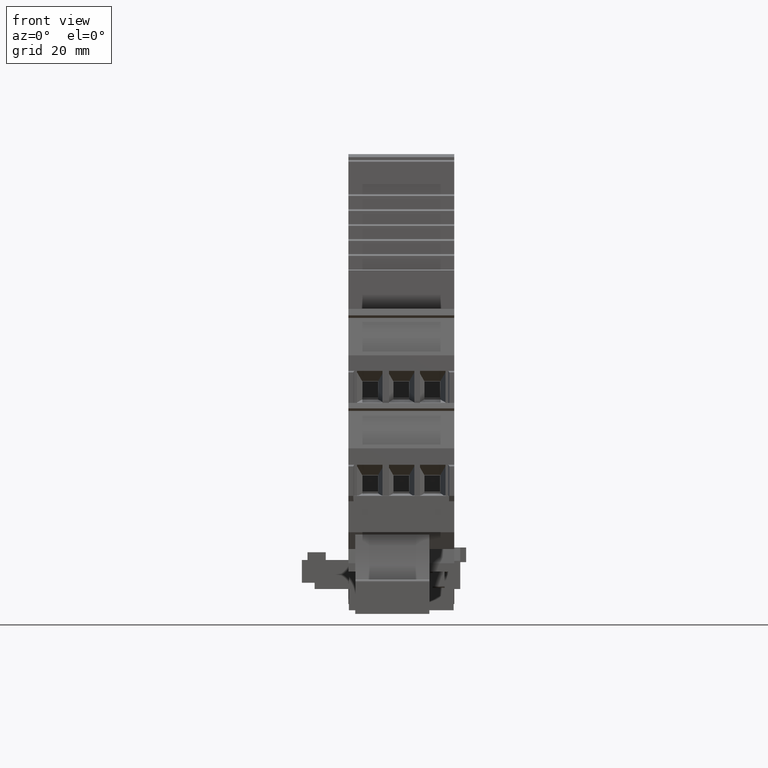
[diagram: clean part render]
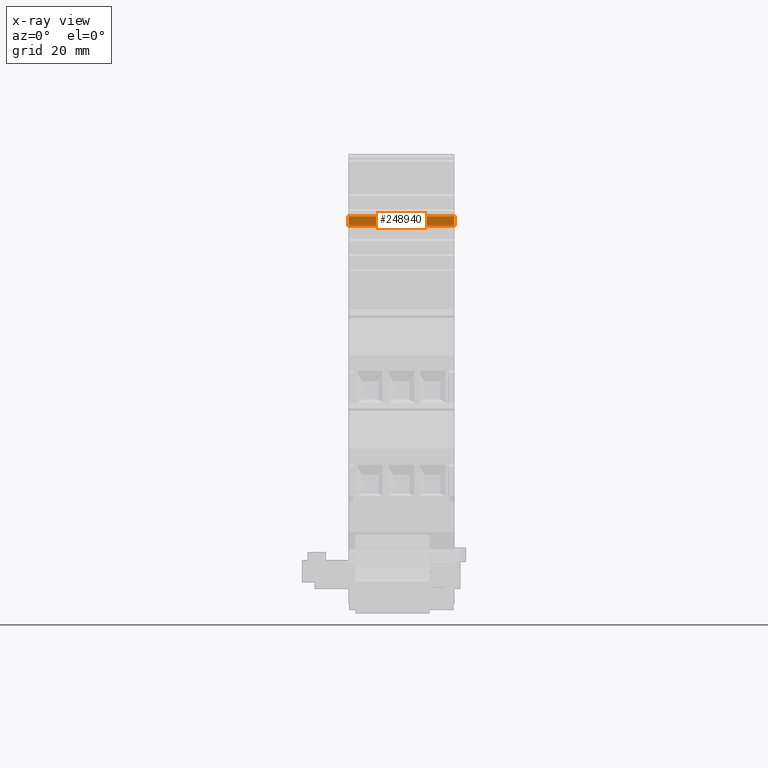
[diagram: x-ray — body ghosted, one internal face saturated and labeled with its STEP entity id]
A machine part, front view, then the same camera in x-ray: the body is ghosted and one INTERNAL B-rep face — a face not visible from any outside direction — is saturated and labeled: STEP entity #248940.
In plain terms, the highlighted planar face has unit normal (-0, -0.9998, 0.0175).
Its self-contained STEP definition (entity closure, byte-faithful):
#237480=CARTESIAN_POINT('',(139.002549343178,85.7283142253393,
-0.939341448194847));
#237490=VERTEX_POINT('',#237480);
#237520=CARTESIAN_POINT('',(138.332521217362,47.3424286058977,
-0.939341446507461));
#237530=DIRECTION('',(0.0174524064373205,0.999847695156391,
-4.39518961027977E-11));
#237540=VECTOR('',#237530,1.);
#237550=LINE('',#237520,#237540);
#237560=CARTESIAN_POINT('',(139.031107826439,87.3644286355942,
-0.93934144826677));
#237570=VERTEX_POINT('',#237560);
#237580=EDGE_CURVE('',#237490,#237570,#237550,.T.);
#247530=CARTESIAN_POINT('',(139.031107826439,87.3644286362251,
13.4136236342822));
#247540=DIRECTION('',(2.01213946265985E-14,-4.3958942890301E-11,-1.));
#247550=VECTOR('',#247540,1.);
#247560=LINE('',#247530,#247550);
#247570=CARTESIAN_POINT('',(139.031107826439,87.3644286348162,
-18.6373414447188));
#247580=VERTEX_POINT('',#247570);
#247590=EDGE_CURVE('',#237570,#247580,#247560,.T.);
#247950=CARTESIAN_POINT('',(139.00254934318,85.7283142245477,
-18.6373414446469));
#247960=VERTEX_POINT('',#247950);
#247990=CARTESIAN_POINT('',(139.002549343176,85.7283142259813,
13.4136236343548));
#248000=DIRECTION('',(1.1839453000236E-13,-4.47300646790821E-11,-1.));
#248010=VECTOR('',#248000,1.);
#248020=LINE('',#247990,#248010);
#248030=EDGE_CURVE('',#237490,#247960,#248020,.T.);
#248780=CARTESIAN_POINT('',(139.018024973996,86.6149125210767,
-1.23834144137132));
#248790=DIRECTION('',(-0.999847695156391,0.0174524064373205,
-7.87307667917234E-13));
#248800=DIRECTION('',(0.0174524064373205,0.999847695156391,
-4.4721185804119E-11));
#248810=AXIS2_PLACEMENT_3D('',#248780,#248790,#248800);
#248820=PLANE('',#248810);
#248830=ORIENTED_EDGE('',*,*,#247590,.T.);
#248840=ORIENTED_EDGE('',*,*,#237580,.T.);
#248850=ORIENTED_EDGE('',*,*,#248030,.F.);
#248860=CARTESIAN_POINT('',(138.332521217365,47.3424286051269,
-18.6373414429593));
#248870=DIRECTION('',(0.0174524064373205,0.999847695156391,
-4.3956496589456E-11));
#248880=VECTOR('',#248870,1.);
#248890=LINE('',#248860,#248880);
#248900=EDGE_CURVE('',#247960,#247580,#248890,.T.);
#248910=ORIENTED_EDGE('',*,*,#248900,.F.);
#248920=EDGE_LOOP('',(#248910,#248850,#248840,#248830));
#248930=FACE_OUTER_BOUND('',#248920,.T.);
#248940=ADVANCED_FACE('',(#248930),#248820,.T.);